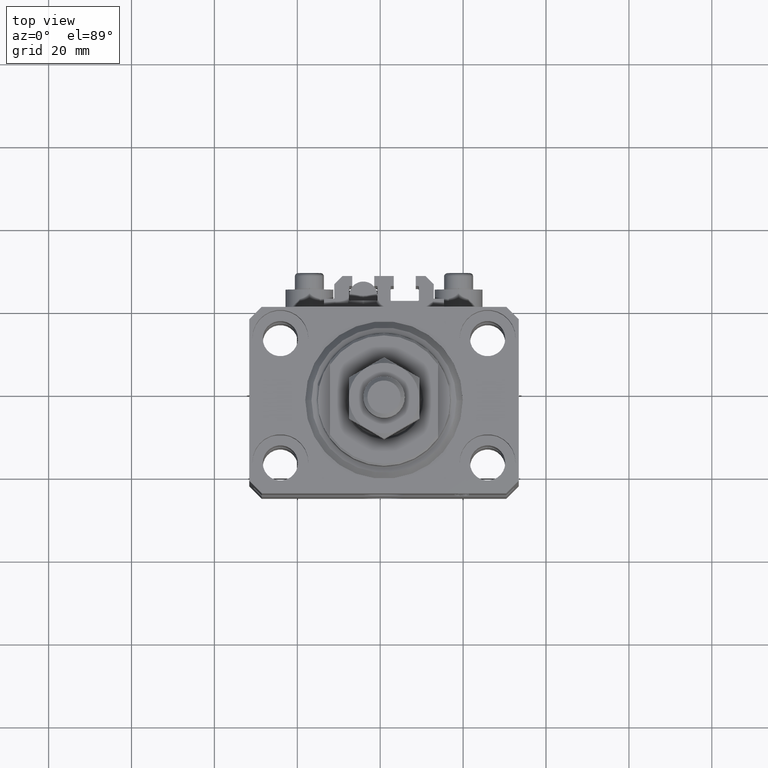
[diagram: clean part render]
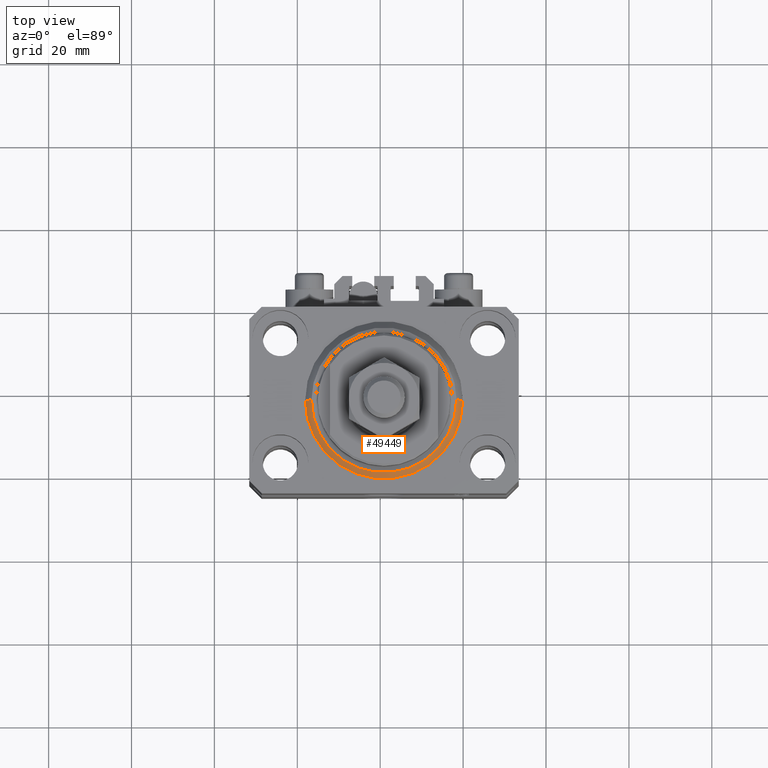
[diagram: same view with one face highlighted and labeled with its STEP entity id]
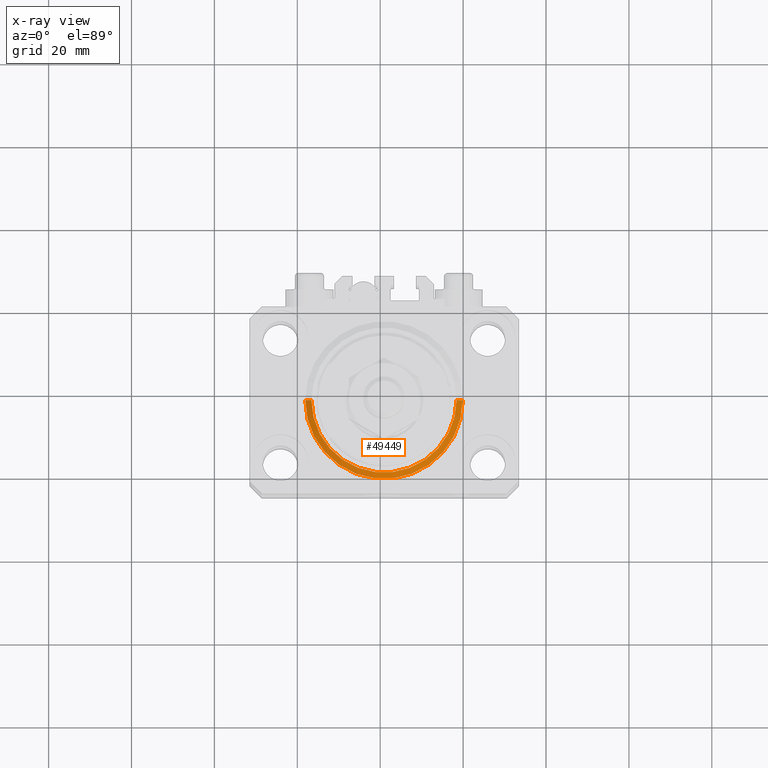
[diagram: x-ray of the same camera — body ghosted, the highlighted face saturated]
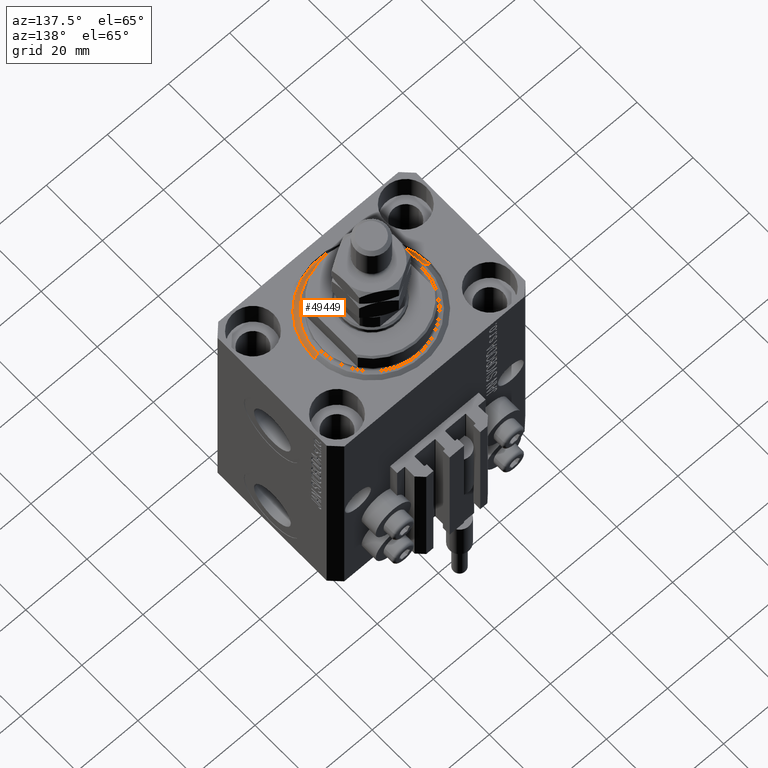
[diagram: same view with one face highlighted and labeled with its STEP entity id]
A machine part, top view. The second image highlights one B-rep face of the part: STEP entity #49449.
The next image is the same camera in x-ray: the body ghosted, the highlighted face saturated — about 0% of this face is hidden behind the body in this view.
A second angle (auxiliary view) of the same face is appended — the face is thin or edge-on in the first view.
In plain terms, the highlighted conical surface has half-angle 45 deg.
Its self-contained STEP definition (entity closure, byte-faithful):
#1544 = ORIENTED_EDGE ( 'NONE', *, *, #37096, .F. ) ;
#1620 = DIRECTION ( 'NONE',  ( 1.000000000000000000, 0.000000000000000000, 0.000000000000000000 ) ) ;
#2769 = VECTOR ( 'NONE', #15059, 1000.000000000000000 ) ;
#7048 = ORIENTED_EDGE ( 'NONE', *, *, #34328, .F. ) ;
#7598 = CIRCLE ( 'NONE', #35649, 19.00000000000000000 ) ;
#9115 = CARTESIAN_POINT ( 'NONE',  ( 0.000000000000000000, 0.000000000000000000, 0.000000000000000000 ) ) ;
#9166 = DIRECTION ( 'NONE',  ( 0.7071067811865483499, 0.000000000000000000, 0.7071067811865467956 ) ) ;
#10876 = DIRECTION ( 'NONE',  ( -0.000000000000000000, -0.000000000000000000, 1.000000000000000000 ) ) ;
#12953 = EDGE_LOOP ( 'NONE', ( #23000, #7048, #15894, #1544 ) ) ;
#13439 = CARTESIAN_POINT ( 'NONE',  ( 19.00000000000000000, 0.000000000000000000, 1.500000000000001332 ) ) ;
#15059 = DIRECTION ( 'NONE',  ( -0.7071067811865483499, 8.659560562354942719E-17, 0.7071067811865467956 ) ) ;
#15350 = VERTEX_POINT ( 'NONE', #39845 ) ;
#15894 = ORIENTED_EDGE ( 'NONE', *, *, #42429, .T. ) ;
#17141 = AXIS2_PLACEMENT_3D ( 'NONE', #9115, #43700, #1620 ) ;
#17237 = CARTESIAN_POINT ( 'NONE',  ( -17.49999999999999645, 2.234980408443919215E-15, 0.000000000000000000 ) ) ;
#18621 = CARTESIAN_POINT ( 'NONE',  ( 0.000000000000000000, 0.000000000000000000, 1.500000000000001332 ) ) ;
#21601 = CARTESIAN_POINT ( 'NONE',  ( -19.00000000000000000, 2.326828918379970970E-15, 1.500000000000001332 ) ) ;
#22432 = CARTESIAN_POINT ( 'NONE',  ( 17.49999999999999645, 0.000000000000000000, 0.000000000000000000 ) ) ;
#23000 = ORIENTED_EDGE ( 'NONE', *, *, #28768, .F. ) ;
#27307 = VERTEX_POINT ( 'NONE', #22432 ) ;
#27975 = VERTEX_POINT ( 'NONE', #37842 ) ;
#28768 = EDGE_CURVE ( 'NONE', #48569, #15350, #40665, .T. ) ;
#29030 = VECTOR ( 'NONE', #9166, 1000.000000000000000 ) ;
#29226 = DIRECTION ( 'NONE',  ( 1.000000000000000000, 0.000000000000000000, 0.000000000000000000 ) ) ;
#31703 = FACE_OUTER_BOUND ( 'NONE', #12953, .T. ) ;
#32298 = AXIS2_PLACEMENT_3D ( 'NONE', #34431, #42455, #45950 ) ;
#34328 = EDGE_CURVE ( 'NONE', #27307, #48569, #41136, .T. ) ;
#34431 = CARTESIAN_POINT ( 'NONE',  ( 0.000000000000000000, 0.000000000000000000, 1.500000000000001332 ) ) ;
#35649 = AXIS2_PLACEMENT_3D ( 'NONE', #18621, #10876, #29226 ) ;
#37096 = EDGE_CURVE ( 'NONE', #15350, #27975, #7598, .T. ) ;
#37842 = CARTESIAN_POINT ( 'NONE',  ( 19.00000000000000000, 2.326828918379970970E-15, 1.500000000000001332 ) ) ;
#39845 = CARTESIAN_POINT ( 'NONE',  ( -19.00000000000000000, 0.000000000000000000, 1.500000000000001332 ) ) ;
#40665 = LINE ( 'NONE', #21601, #2769 ) ;
#41136 = CIRCLE ( 'NONE', #17141, 17.49999999999999645 ) ;
#42429 = EDGE_CURVE ( 'NONE', #27307, #27975, #43496, .T. ) ;
#42455 = DIRECTION ( 'NONE',  ( -0.000000000000000000, -0.000000000000000000, 1.000000000000000000 ) ) ;
#43496 = LINE ( 'NONE', #13439, #29030 ) ;
#43700 = DIRECTION ( 'NONE',  ( -0.000000000000000000, -0.000000000000000000, -1.000000000000000000 ) ) ;
#45047 = CONICAL_SURFACE ( 'NONE', #32298, 19.00000000000000000, 0.7853981633974492782 ) ;
#45950 = DIRECTION ( 'NONE',  ( 1.000000000000000000, 0.000000000000000000, 0.000000000000000000 ) ) ;
#48569 = VERTEX_POINT ( 'NONE', #17237 ) ;
#49449 = ADVANCED_FACE ( 'NONE', ( #31703 ), #45047, .T. ) ;